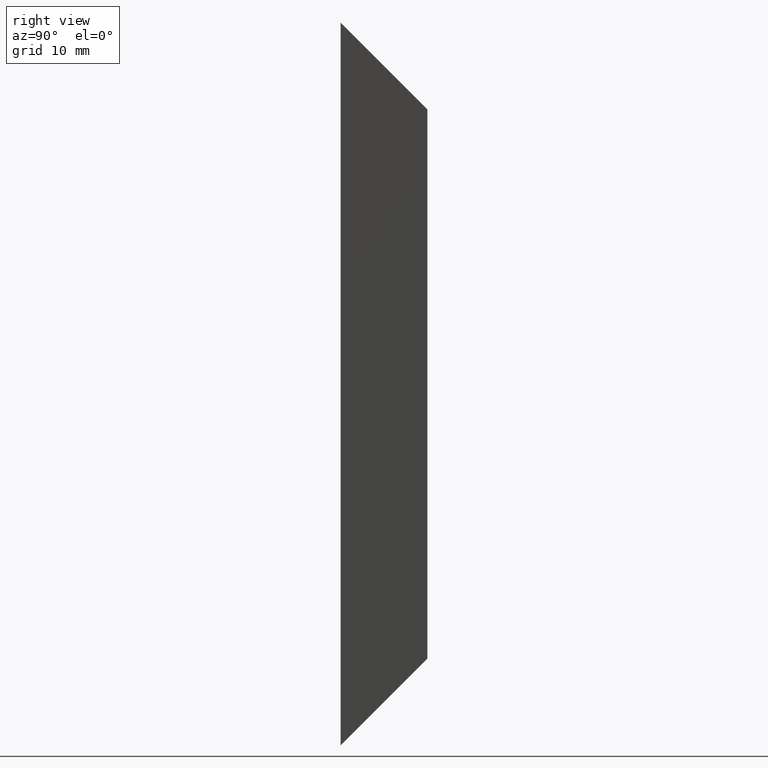
[diagram: clean part render]
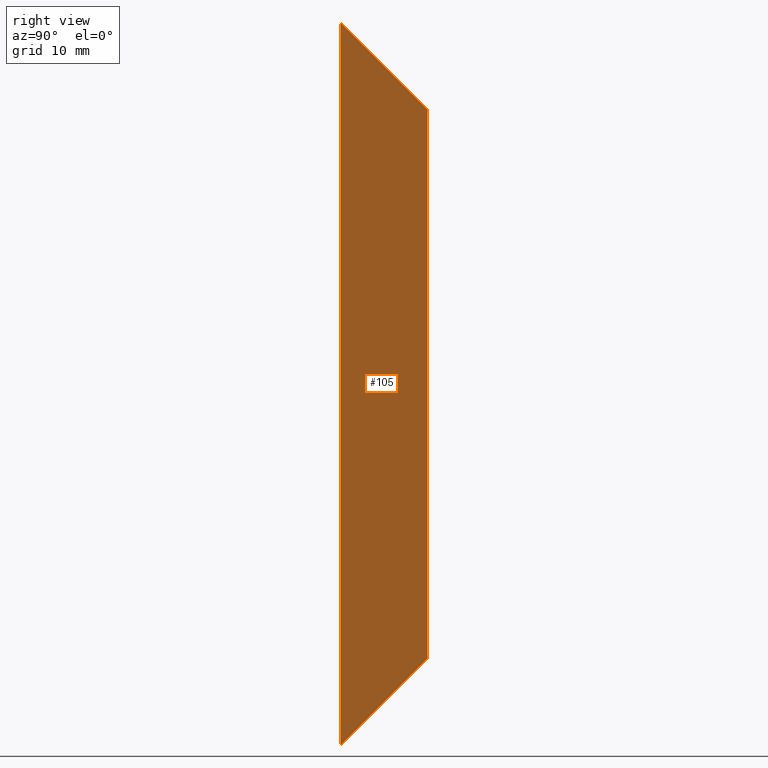
[diagram: same view with one face highlighted and labeled with its STEP entity id]
A machine part, right view. The second image highlights one B-rep face of the part: STEP entity #105.
In plain terms, the highlighted planar face has unit normal (0.979, 0.204, 0).
Its self-contained STEP definition (entity closure, byte-faithful):
#19=FACE_OUTER_BOUND('',#25,.T.);
#25=EDGE_LOOP('',(#87,#88,#89,#90));
#27=LINE('',#166,#39);
#31=LINE('',#175,#43);
#36=LINE('',#183,#48);
#38=LINE('',#187,#50);
#39=VECTOR('',#140,10.);
#43=VECTOR('',#146,10.);
#48=VECTOR('',#153,10.);
#50=VECTOR('',#159,10.);
#51=VERTEX_POINT('',#164);
#52=VERTEX_POINT('',#165);
#55=VERTEX_POINT('',#173);
#56=VERTEX_POINT('',#174);
#59=EDGE_CURVE('',#51,#52,#27,.T.);
#63=EDGE_CURVE('',#55,#56,#31,.T.);
#68=EDGE_CURVE('',#52,#55,#36,.T.);
#70=EDGE_CURVE('',#51,#56,#38,.T.);
#87=ORIENTED_EDGE('',*,*,#59,.T.);
#88=ORIENTED_EDGE('',*,*,#68,.T.);
#89=ORIENTED_EDGE('',*,*,#63,.T.);
#90=ORIENTED_EDGE('',*,*,#70,.F.);
#99=PLANE('',#134);
#105=ADVANCED_FACE('',(#19),#99,.T.);
#134=AXIS2_PLACEMENT_3D('',#186,#157,#158);
#140=DIRECTION('',(-0.145741009332272,0.699556844794908,0.699556844794906));
#146=DIRECTION('',(0.145741009332272,-0.699556844794908,0.699556844794906));
#153=DIRECTION('',(0.,0.,1.));
#157=DIRECTION('center_axis',(0.978980419737605,0.203954254112,0.));
#158=DIRECTION('ref_axis',(-0.203954254112,0.978980419737605,0.));
#159=DIRECTION('',(0.,0.,1.));
#164=CARTESIAN_POINT('',(5.,0.,-50.));
#165=CARTESIAN_POINT('',(2.50000000000001,12.,-38.));
#166=CARTESIAN_POINT('',(1.17459643160579,18.3619371282923,-31.6380628717078));
#173=CARTESIAN_POINT('',(2.50000000000001,12.,38.));
#174=CARTESIAN_POINT('',(5.,0.,50.));
#175=CARTESIAN_POINT('',(2.3980458793543,12.4893797790994,37.5106202209006));
#183=CARTESIAN_POINT('',(2.50000000000001,12.,0.));
#186=CARTESIAN_POINT('Origin',(5.,0.,0.));
#187=CARTESIAN_POINT('',(5.,0.,0.));